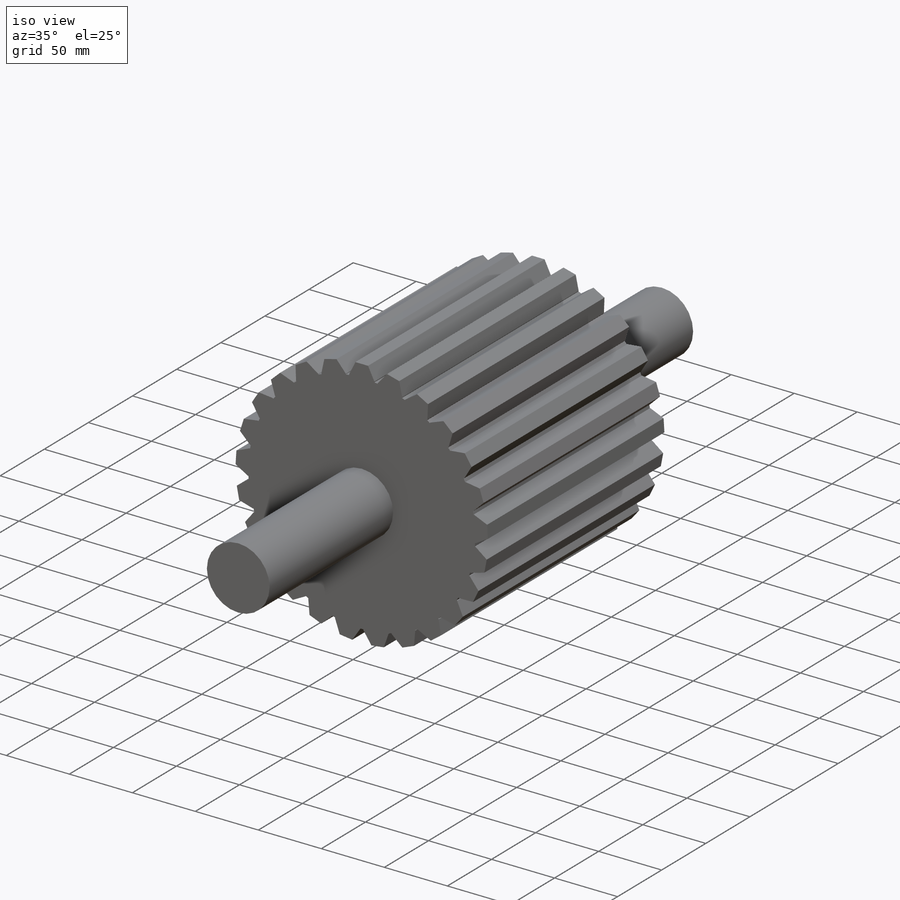
[diagram: iso view]
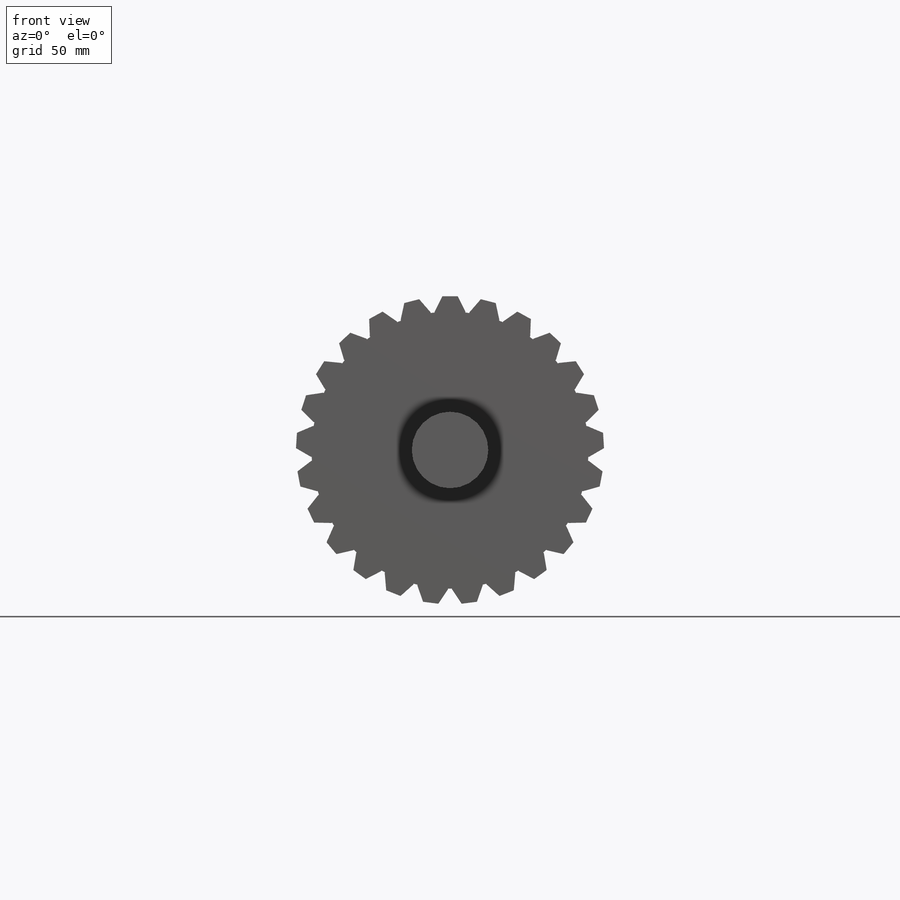
[diagram: front view]
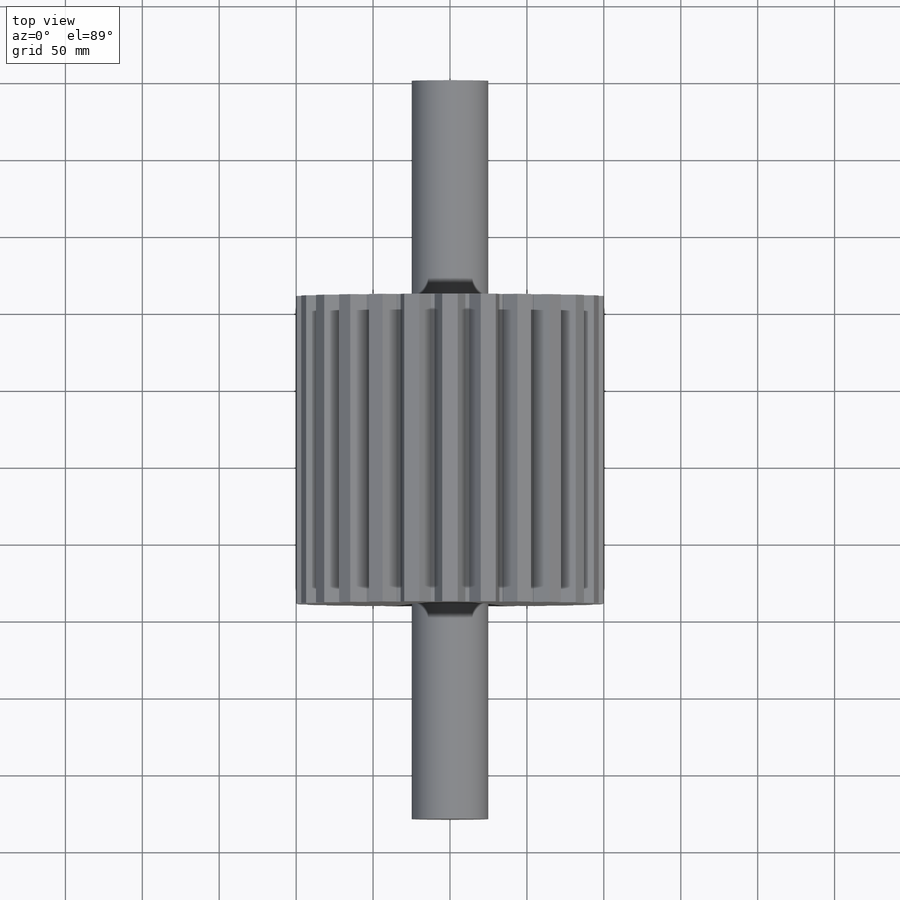
[diagram: top view]
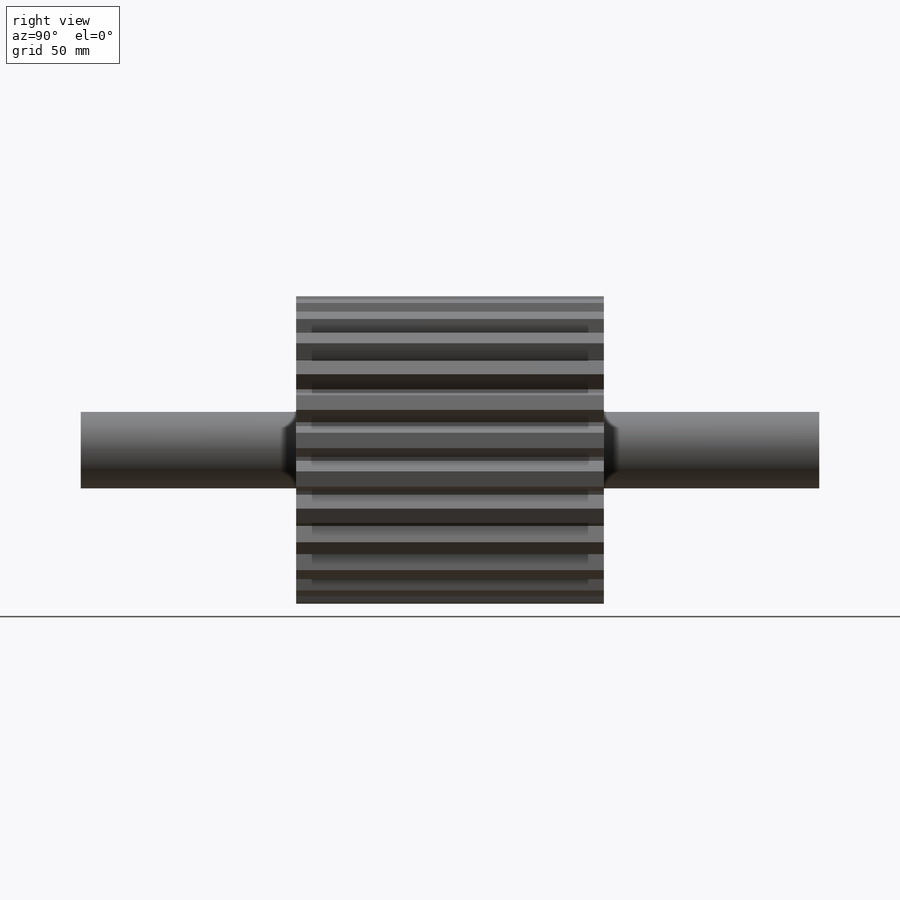
[diagram: right view]
SOLIDWORKS PART (.sldprt)
format: sldprt  version: not decoded by parser v0  size: 284,160 bytes
history: native  units: mm
features: sketch x3, extrude x3, material x1, plane x1, pattern_circular x1 (+13 scaffold rows collapsed)
feature tree (22):
  scaffold x13  (default folders/planes/origin — collapsed)
  material  "Material <not specified>"
  sketch  "Sketch1"  dims[D1=49.75mm]
  extrude  "Boss-Extrude1"  Depth=480mm
  plane  "Plane1"  Offset=240mm
  sketch  "Sketch2"  dims[180=180.0mm]
  extrude  "Boss-Extrude2"  Depth=200mm
  sketch  "Sketch3"  dims[c1.D1=10.0mm c1.D2=20.0mm c1.D3=5.0mm c1.D4=5.0mm c2.D2=5.0mm c2.D3=10.0mm c2.D4=5.0mm c2.D5=10.0mm c3.D2=5.0mm c3.D3=10.0mm]
  extrude  "Boss-Extrude3"  Depth=200mm
  pattern_circular  "CirPattern1"  Count=25 Angle=360deg
decode coverage: 7 of 7 modeling features carry decoded parameters
note: suppression state not decoded; provenance and decode notes live in map.json
